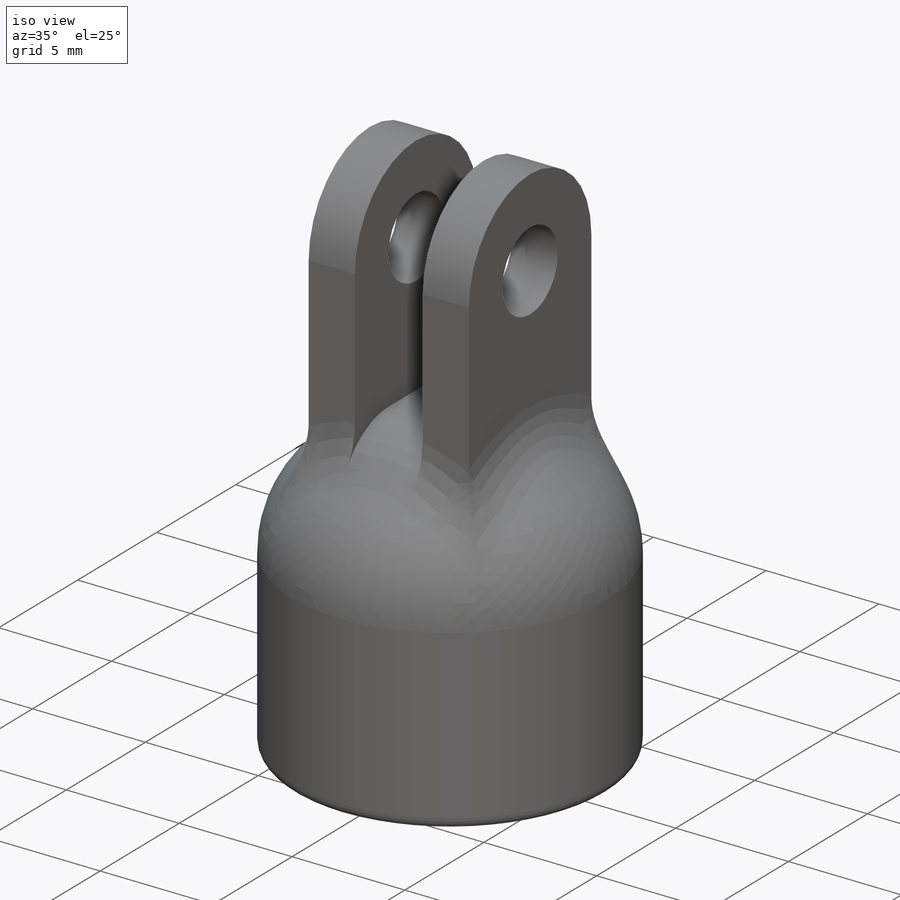
[diagram: iso view]
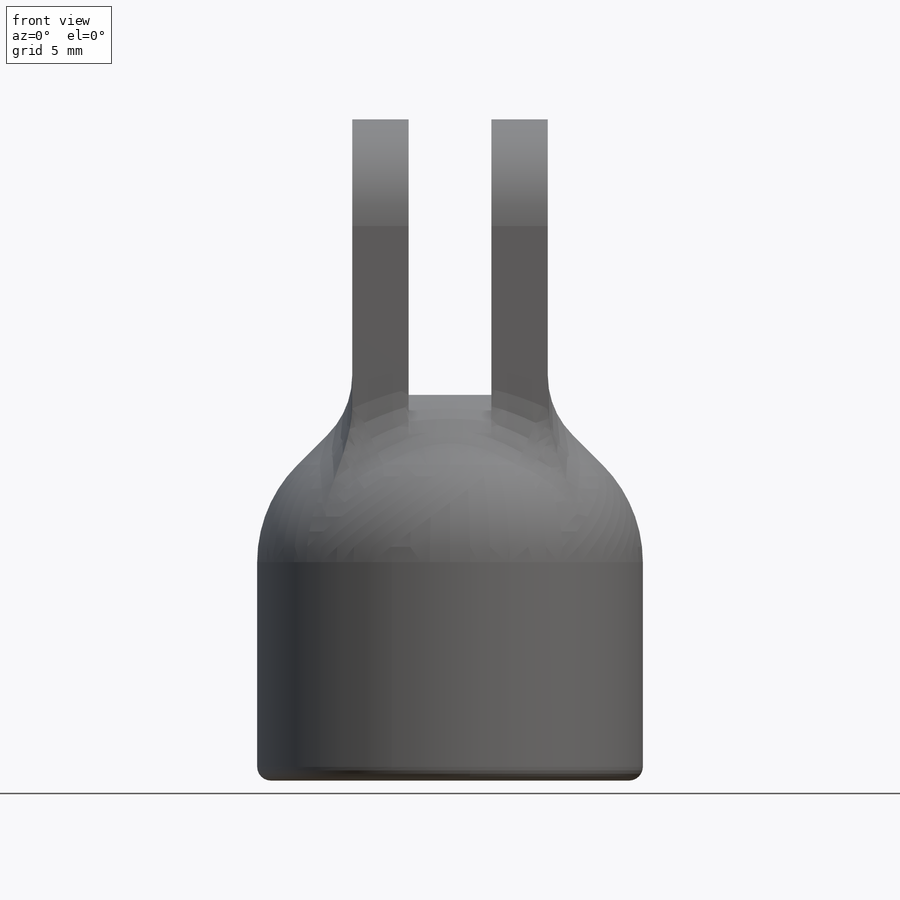
[diagram: front view]
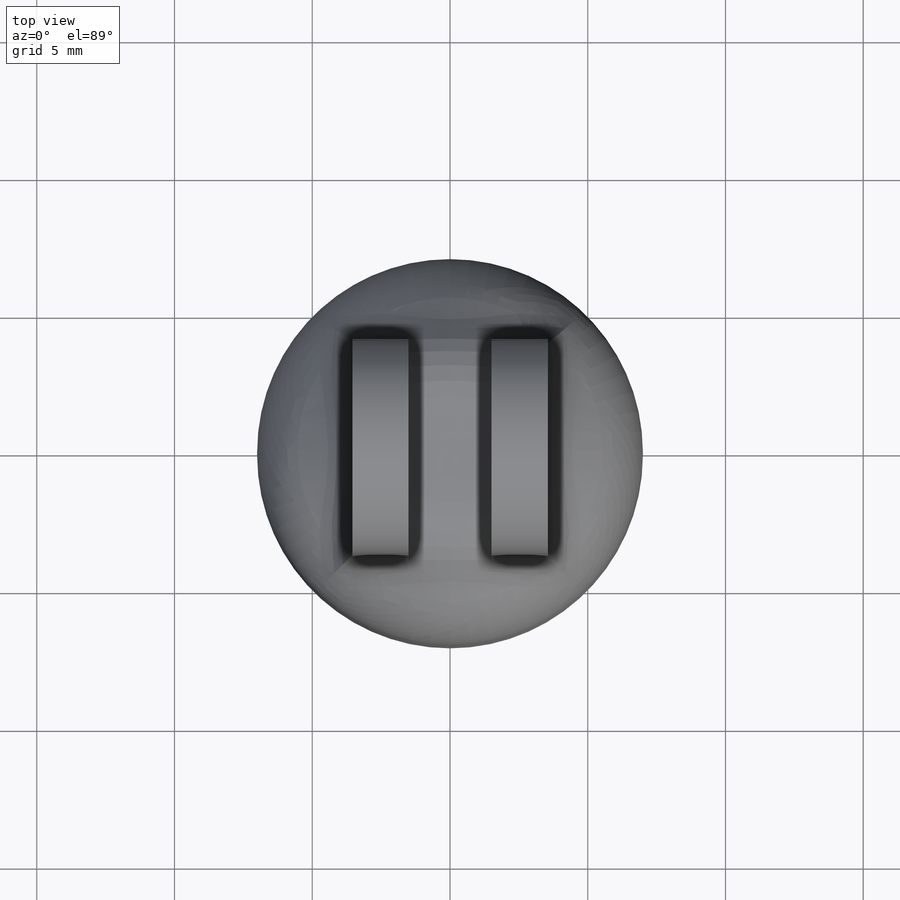
[diagram: top view]
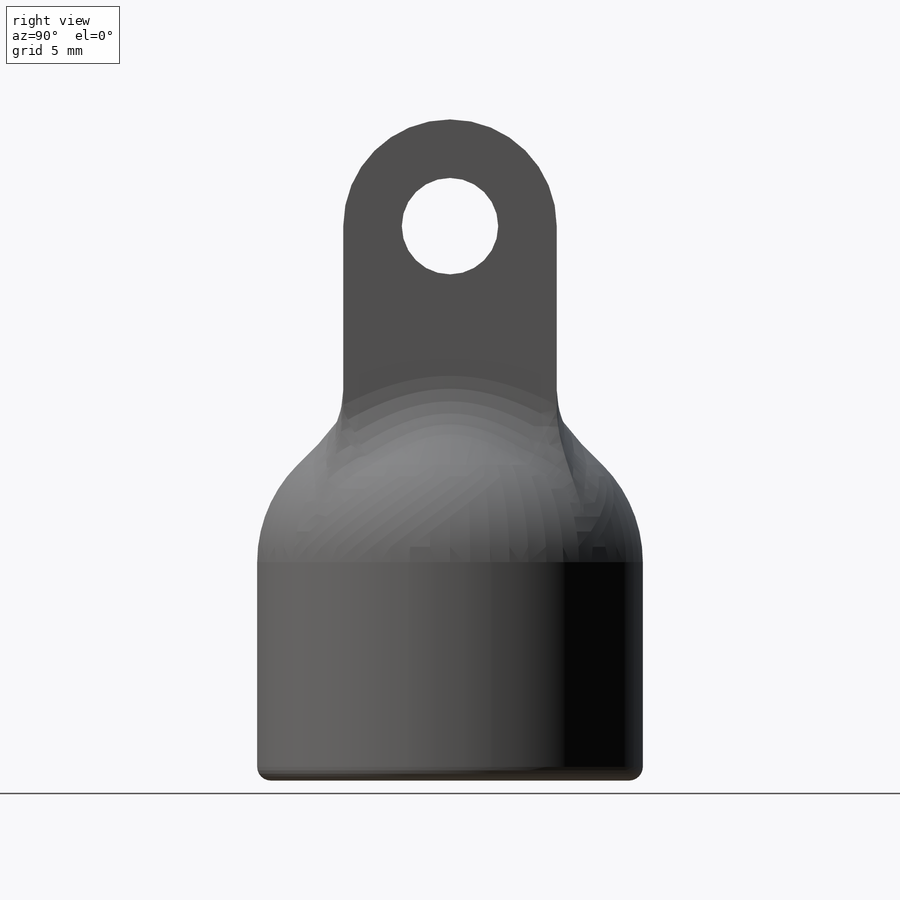
[diagram: right view]
SOLIDWORKS PART (.sldprt)
format: sldprt  version: not decoded by parser v0  size: 327,680 bytes
history: native  units: mm
features: sketch x5, fillet x4, extrude x3, cut_extrude x2, material x1, chamfer x1 (+12 scaffold rows collapsed)
feature tree (28):
  scaffold x12  (default folders/planes/origin — collapsed)
  material  "Material <not specified>"
  sketch  "Sketch1"  dims[D1=8.0mm D2=3.0mm]
  extrude  "Boss-Extrude1"  Depth=10mm
  sketch  "Sketch4"
  extrude  "Boss-Extrude3"  Depth=4mm
  sketch  "Sketch2"  dims[c1.D1=~8.414904mm c1.D2=~15.172812mm c2.D1=7.75mm c2.D2=7.1mm]
  extrude  "Boss-Extrude2"  Depth=14mm
  sketch  "Sketch5"  dims[c1.D1=~10.163825mm c1.D2=~2.727697mm c2.D1=3.0mm c2.D2=10.0mm]
  cut_extrude  "Cut-Extrude1"  [1 undecoded]
  sketch  "Sketch6"  dims[D1=3.5mm D2=~17.782387mm]
  cut_extrude  "Cut-Extrude2"  [1 undecoded]
  fillet  "Fillet1"  Radius=5mm
  fillet  "Fillet2"  Radius=3mm
  fillet  "Fillet3"  Radius=3mm
  chamfer  "Chamfer1"  Distance=1mm Angle=45deg
  fillet  "Fillet4"  Radius=0.5mm
decode coverage: 12 of 15 modeling features carry decoded parameters
note: ~ marks probable driven/reference dimensions
note: 2 parameter values undecoded
note: suppression state not decoded; provenance and decode notes live in map.json
